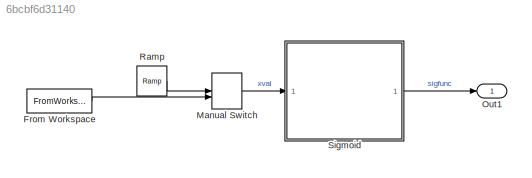
MODEL slx_6bcbf6d31140
KIND model
CONFIG AbsTol = auto
CONFIG EnableMultiTasking = off
CONFIG FixedStep = auto
CONFIG MaxStep = auto
CONFIG MinStep = auto
CONFIG RelTol = 1e-3
CONFIG SampleTimeConstraint = Unconstrained
CONFIG SolverName = VariableStepAuto
CONFIG StartTime = 0.0
CONFIG StopTime = 10.0
BLOCK [FromWorkspace] From Workspace
  VariableName = xList
BLOCK [ManualSwitch] Manual Switch
  CurrentSetting = 0
BLOCK [Outport] Out1
BLOCK [Reference] Ramp  REF=simulink/Sources/Ramp
  Ports = [0, 1]
  SourceBlock = simulink/Sources/Ramp
  SourceProductBaseCode = SL
  SourceType = Ramp
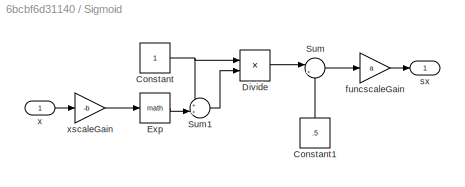
BLOCK [SubSystem] Sigmoid
  Ports = [1, 1]
  RequestExecContextInheritance = off
BLOCK [Constant] Sigmoid/Constant
BLOCK [Constant] Sigmoid/Constant1
  NameLocation = right
  Value = .5
BLOCK [Product] Sigmoid/Divide
  Inputs = */
  Ports = [2, 1]
BLOCK [Math] Sigmoid/Exp
  Ports = [1, 1]
BLOCK [Sum] Sigmoid/Sum
  Inputs = |+-
  Ports = [2, 1]
BLOCK [Sum] Sigmoid/Sum1
  Inputs = ++|
  Ports = [2, 1]
BLOCK [Gain] Sigmoid/funcscaleGain
  Gain = a
BLOCK [Outport] Sigmoid/sx
BLOCK [Inport] Sigmoid/x
BLOCK [Gain] Sigmoid/xscaleGain
  Gain = -b
LINE From Workspace:1 -> Manual Switch:2
LINE Manual Switch:1 -> Sigmoid:1
LINE Ramp:1 -> Manual Switch:1
LINE Sigmoid/Constant1:1 -> Sigmoid/Sum:2
NET Sigmoid/Constant:1 -> Sigmoid/Divide:1, Sigmoid/Sum1:1
LINE Sigmoid/Divide:1 -> Sigmoid/Sum:1
LINE Sigmoid/Exp:1 -> Sigmoid/Sum1:2
LINE Sigmoid/Sum1:1 -> Sigmoid/Divide:2
LINE Sigmoid/Sum:1 -> Sigmoid/funcscaleGain:1
LINE Sigmoid/funcscaleGain:1 -> Sigmoid/sx:1
LINE Sigmoid/x:1 -> Sigmoid/xscaleGain:1
LINE Sigmoid/xscaleGain:1 -> Sigmoid/Exp:1
LINE Sigmoid:1 -> Out1:1
note: NET lines group one-source signal fan-out (src -> all destinations, sorted); 1:1 wires keep LINE
